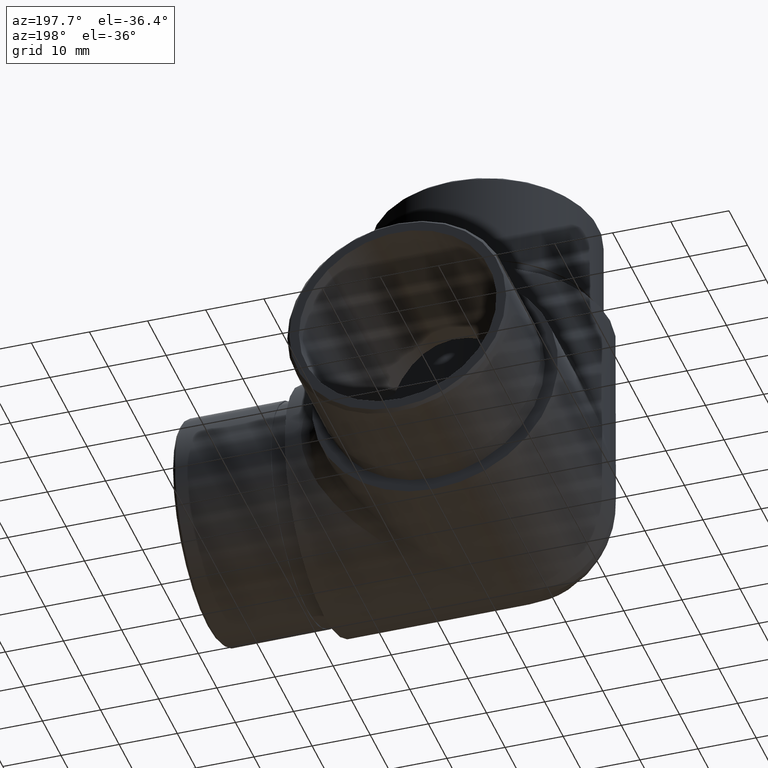
[diagram: clean part render]
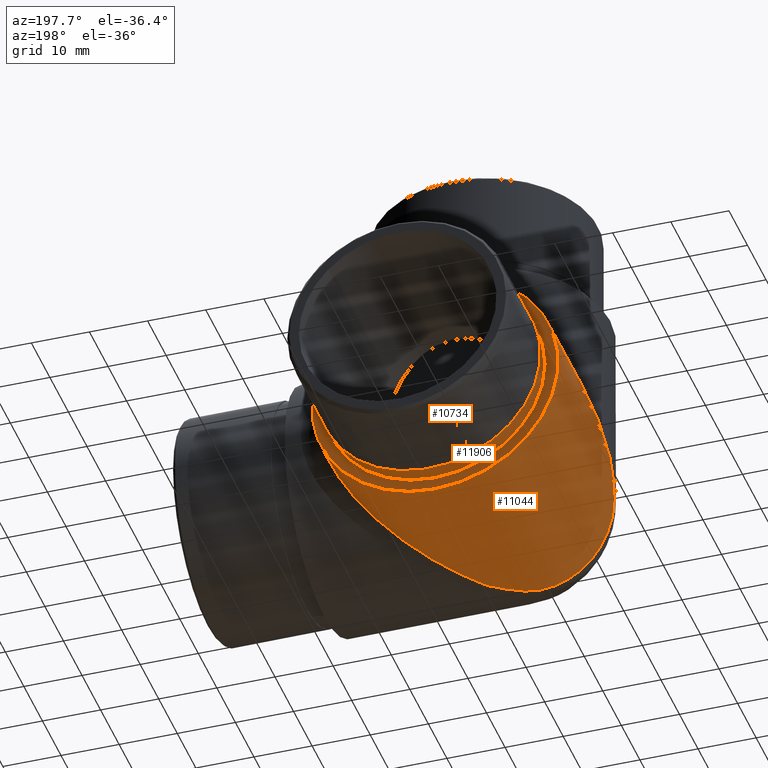
[diagram: same view with one multi-face feature highlighted, each face labeled with its STEP entity id]
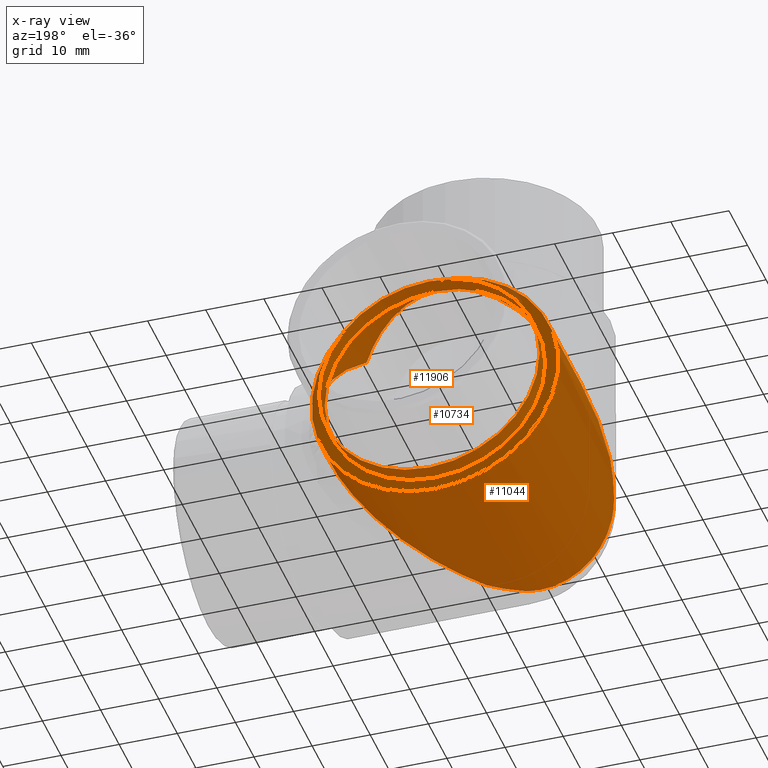
[diagram: x-ray of the same camera — body ghosted, the whole feature saturated]
A machine part, auxiliary view. The highlighted faces form ONE feature: a stepped (counterbored) hole: 2 coaxial cylindrical walls of radii 18.95 -> 21.2 mm joined by 1 annular planar shoulder face(s). The faces share edges in the B-rep.
The next image is the same camera in x-ray: the body ghosted and the whole hole feature saturated, so the bore chain is visible through the body.
Their STEP definitions:
[1] entity #11044 (Cylinder):
#71 = CARTESIAN_POINT ( 'NONE',  ( -18.08536954167242400, 14.27693381005243200, 10.09506733471837800 ) ) ;
#126 = CARTESIAN_POINT ( 'NONE',  ( -5.197968279103943900, 16.98278045280242300, 0.6471139308994096100 ) ) ;
#135 = CARTESIAN_POINT ( 'NONE',  ( 0.0000000000000000000, 21.19999999999999900, 21.20000000000000300 ) ) ;
#204 = CARTESIAN_POINT ( 'NONE',  ( -15.68952493644962900, 13.83366260230900500, 6.933596255399578500 ) ) ;
#283 =( BOUNDED_CURVE ( )  B_SPLINE_CURVE ( 3, ( #5126, #10273, #10177, #320 ),
 .UNSPECIFIED., .F., .F. ) 
 B_SPLINE_CURVE_WITH_KNOTS ( ( 4, 4 ),
 ( 4.464676216073330700, 4.712388980384689700 ),
 .UNSPECIFIED. ) 
 CURVE ( )  GEOMETRIC_REPRESENTATION_ITEM ( )  RATIONAL_B_SPLINE_CURVE ( ( 1.000000000000000000, 0.9948930657463034300, 0.9948930657463034300, 1.000000000000000000 ) ) 
 REPRESENTATION_ITEM ( '' )  );
#320 = CARTESIAN_POINT ( 'NONE',  ( -21.20000000000000300, 21.19999999999999600, 21.19999999999999900 ) ) ;
#425 = CARTESIAN_POINT ( 'NONE',  ( -20.55288606910059500, 16.98278045280247600, 16.00203172089607400 ) ) ;
#739 = CARTESIAN_POINT ( 'NONE',  ( 0.0000000000000000000, 21.19999999999999900, 3.469446951953614200E-015 ) ) ;
#958 = ORIENTED_EDGE ( 'NONE', *, *, #2876, .T. ) ;
#1094 = CARTESIAN_POINT ( 'NONE',  ( -20.55288606910059500, 16.98278045280247600, 16.00203172089607400 ) ) ;
#1129 = B_SPLINE_CURVE_WITH_KNOTS ( 'NONE', 3,
 ( #11229, #9098, #11097, #8198, #8145, #2229, #11149, #3103, #2135, #9153, #4162, #3151, #5177, #6190, #7050, #9237, #204, #7183, #11053, #2179, #71, #5320, #2409, #12411, #8438, #8400, #4477, #425 ),
 .UNSPECIFIED., .F., .F.,
 ( 4, 2, 2, 2, 2, 2, 2, 2, 2, 2, 2, 2, 2, 4 ),
 ( 0.0000000000000000000, 0.001495338597872463700, 0.002990677195744927400, 0.004486015793617390900, 0.005981354391489854800, 0.007476692989362318700, 0.008972031587234781700, 0.01196270878297970600, 0.01345804738085217200, 0.01495338597872463700, 0.01794406317446955700, 0.02093474037021448100, 0.02243007896808694300, 0.02392541756595940200 ),
 .UNSPECIFIED. ) ;
#1313 = EDGE_CURVE ( 'NONE', #6677, #10725, #12597, .T. ) ;
#1835 = CARTESIAN_POINT ( 'NONE',  ( 0.0000000000000000000, 49.19999999999999600, 42.40000000000000600 ) ) ;
#2042 = ORIENTED_EDGE ( 'NONE', *, *, #12171, .T. ) ;
#2135 = CARTESIAN_POINT ( 'NONE',  ( -9.820535882018989000, 14.64204169527234700, 2.405513702933931100 ) ) ;
#2179 = CARTESIAN_POINT ( 'NONE',  ( -17.55149368628998400, 14.10536206370518500, 9.268225289280799500 ) ) ;
#2229 = CARTESIAN_POINT ( 'NONE',  ( -8.089651255128046600, 15.27566649698903600, 1.598777189915507400 ) ) ;
#2255 = DIRECTION ( 'NONE',  ( 0.0000000000000000000, 0.0000000000000000000, 1.000000000000000000 ) ) ;
#2409 = CARTESIAN_POINT ( 'NONE',  ( -19.43077296712029400, 15.07226308697375400, 12.67242482699260700 ) ) ;
#2876 = EDGE_CURVE ( 'NONE', #7378, #9991, #283, .T. ) ;
#3103 = CARTESIAN_POINT ( 'NONE',  ( -9.391087212507073900, 14.78000276259461600, 2.187490430807732500 ) ) ;
#3151 = CARTESIAN_POINT ( 'NONE',  ( -11.92146516739235000, 14.12019775378289100, 3.662523492394984500 ) ) ;
#3445 = DIRECTION ( 'NONE',  ( 0.0000000000000000000, 0.0000000000000000000, 1.000000000000000000 ) ) ;
#3481 = VERTEX_POINT ( 'NONE', #3553 ) ;
#3553 = CARTESIAN_POINT ( 'NONE',  ( -5.197968279103943900, 16.98278045280242300, 0.6471139308994096100 ) ) ;
#3740 = ORIENTED_EDGE ( 'NONE', *, *, #10962, .T. ) ;
#3790 = CARTESIAN_POINT ( 'NONE',  ( 14.99066376115480100, 39.01909088590100100, 36.19066376115481600 ) ) ;
#3895 = AXIS2_PLACEMENT_3D ( 'NONE', #135, #5253, #2255 ) ;
#3975 = ORIENTED_EDGE ( 'NONE', *, *, #6107, .T. ) ;
#4162 = CARTESIAN_POINT ( 'NONE',  ( -11.09100523449426000, 14.29671638309033100, 3.125874381299439200 ) ) ;
#4477 = CARTESIAN_POINT ( 'NONE',  ( -20.45515652715063500, 16.66926594737545400, 15.61560686536977500 ) ) ;
#4561 = EDGE_LOOP ( 'NONE', ( #3740, #6459, #3975, #4876, #958 ) ) ;
#4876 = ORIENTED_EDGE ( 'NONE', *, *, #7369, .T. ) ;
#5101 = CARTESIAN_POINT ( 'NONE',  ( -1.754994033482943700, 19.77613691623081100, 3.361984560672234300E-015 ) ) ;
#5126 = CARTESIAN_POINT ( 'NONE',  ( -20.55288606910059500, 16.98278045280247600, 16.00203172089607400 ) ) ;
#5177 = CARTESIAN_POINT ( 'NONE',  ( -12.33249353195106000, 14.04730073014721200, 3.948970992746041000 ) ) ;
#5180 = AXIS2_PLACEMENT_3D ( 'NONE', #9614, #5485, #3445 ) ;
#5253 = DIRECTION ( 'NONE',  ( 0.0000000000000000000, 1.000000000000000000, 0.0000000000000000000 ) ) ;
#5320 = CARTESIAN_POINT ( 'NONE',  ( -19.03260916032204300, 14.76455731139192600, 11.81064914332639800 ) ) ;
#5402 = CIRCLE ( 'NONE', #5180, 21.20000000000000300 ) ;
#5485 = DIRECTION ( 'NONE',  ( -0.0000000000000000000, -1.000000000000000000, -0.0000000000000000000 ) ) ;
#6106 = CARTESIAN_POINT ( 'NONE',  ( -3.496544108248947200, 18.36318119519424700, 0.2168118876889868800 ) ) ;
#6107 = EDGE_CURVE ( 'NONE', #10725, #3481, #10006, .T. ) ;
#6160 = VERTEX_POINT ( 'NONE', #1835 ) ;
#6190 = CARTESIAN_POINT ( 'NONE',  ( -13.52806072536003700, 13.87495725306072100, 4.846860634425551600 ) ) ;
#6459 = ORIENTED_EDGE ( 'NONE', *, *, #1313, .T. ) ;
#6677 = VERTEX_POINT ( 'NONE', #11952 ) ;
#6771 = CARTESIAN_POINT ( 'NONE',  ( -21.19999999999999200, 47.57612009653620800, 43.38943436692729000 ) ) ;
#6824 = CARTESIAN_POINT ( 'NONE',  ( 14.99066376115480100, 39.01909088590100100, 36.19066376115481600 ) ) ;
#6955 = CARTESIAN_POINT ( 'NONE',  ( -21.20000000000000300, 21.19999999999999600, 21.19999999999999900 ) ) ;
#7050 = CARTESIAN_POINT ( 'NONE',  ( -14.28149651895796900, 13.81943085732853200, 5.500196590529179200 ) ) ;
#7183 = CARTESIAN_POINT ( 'NONE',  ( -16.34651744384988700, 13.89079711781421100, 7.691379197218735100 ) ) ;
#7369 = EDGE_CURVE ( 'NONE', #3481, #7378, #1129, .T. ) ;
#7378 = VERTEX_POINT ( 'NONE', #1094 ) ;
#7821 = CARTESIAN_POINT ( 'NONE',  ( 22.18943436692730800, 47.57612009653623600, 1.176705184447823300E-014 ) ) ;
#7857 =( BOUNDED_CURVE ( )  B_SPLINE_CURVE ( 3, ( #6955, #6771, #12747, #3790 ),
 .UNSPECIFIED., .F., .T. ) 
 B_SPLINE_CURVE_WITH_KNOTS ( ( 4, 4 ),
 ( 4.712388980384689700, 7.068583470577033600 ),
 .UNSPECIFIED. ) 
 CURVE ( )  GEOMETRIC_REPRESENTATION_ITEM ( )  RATIONAL_B_SPLINE_CURVE ( ( 1.000000000000000000, 0.5884556215767268200, 0.5884556215767268200, 1.000000000000000000 ) ) 
 REPRESENTATION_ITEM ( '' )  );
#8145 = CARTESIAN_POINT ( 'NONE',  ( -7.234288008887868500, 15.67506620106537000, 1.267226232041046800 ) ) ;
#8198 = CARTESIAN_POINT ( 'NONE',  ( -6.812397296928012700, 15.89623103818427900, 1.119703505051878900 ) ) ;
#8400 = CARTESIAN_POINT ( 'NONE',  ( -20.33985751058986600, 16.38929708899549100, 15.20654693153173700 ) ) ;
#8438 = CARTESIAN_POINT ( 'NONE',  ( -20.07536486093711000, 15.88786235754972900, 14.37277443354314600 ) ) ;
#8585 = CARTESIAN_POINT ( 'NONE',  ( -21.20000000000000300, 21.19999999999999600, 21.19999999999999900 ) ) ;
#8781 = CARTESIAN_POINT ( 'NONE',  ( 0.0000000000000000000, 21.19999999999999900, 3.469446951953614200E-015 ) ) ;
#8832 = CARTESIAN_POINT ( 'NONE',  ( 30.68096327270293200, 57.66982426755253500, 20.50036424960669700 ) ) ;
#9023 = CARTESIAN_POINT ( 'NONE',  ( 0.0000000000000000000, 21.19999999999999900, 3.469446951953614200E-015 ) ) ;
#9098 = CARTESIAN_POINT ( 'NONE',  ( -5.584814091753020900, 16.66892441612488100, 0.7449499358426353600 ) ) ;
#9153 = CARTESIAN_POINT ( 'NONE',  ( -10.67048746986737100, 14.40037622838390700, 2.874707714854037200 ) ) ;
#9237 = CARTESIAN_POINT ( 'NONE',  ( -15.34480981153478600, 13.81940756289023200, 6.563468500799594100 ) ) ;
#9614 = CARTESIAN_POINT ( 'NONE',  ( 0.0000000000000000000, 49.19999999999999600, 21.20000000000000300 ) ) ;
#9991 = VERTEX_POINT ( 'NONE', #8585 ) ;
#10006 =( BOUNDED_CURVE ( )  B_SPLINE_CURVE ( 3, ( #9023, #5101, #6106, #126 ),
 .UNSPECIFIED., .F., .T. ) 
 B_SPLINE_CURVE_WITH_KNOTS ( ( 4, 4 ),
 ( 1.570796326794896600, 1.818509091106257100 ),
 .UNSPECIFIED. ) 
 CURVE ( )  GEOMETRIC_REPRESENTATION_ITEM ( )  RATIONAL_B_SPLINE_CURVE ( ( 1.000000000000000000, 0.9948930657463034300, 0.9948930657463034300, 1.000000000000000000 ) ) 
 REPRESENTATION_ITEM ( '' )  );
#10177 = CARTESIAN_POINT ( 'NONE',  ( -21.19999999999999600, 19.77613691623081800, 19.44500596651706200 ) ) ;
#10217 = FACE_OUTER_BOUND ( 'NONE', #10816, .T. ) ;
#10273 = CARTESIAN_POINT ( 'NONE',  ( -20.98318811231101200, 18.36318119519426200, 17.70345589175107300 ) ) ;
#10725 = VERTEX_POINT ( 'NONE', #739 ) ;
#10816 = EDGE_LOOP ( 'NONE', ( #2042 ) ) ;
#10962 = EDGE_CURVE ( 'NONE', #9991, #6677, #7857, .T. ) ;
#11044 = ADVANCED_FACE ( 'NONE', ( #11303, #10217 ), #11463, .T. ) ;
#11053 = CARTESIAN_POINT ( 'NONE',  ( -16.65923689557184100, 13.93351823779910100, 8.079200838019559700 ) ) ;
#11097 = CARTESIAN_POINT ( 'NONE',  ( -5.987738153905797700, 16.39329701911221400, 0.8585630778826571800 ) ) ;
#11149 = CARTESIAN_POINT ( 'NONE',  ( -8.525475077174363000, 15.09675103101153400, 1.783916103909619000 ) ) ;
#11229 = CARTESIAN_POINT ( 'NONE',  ( -5.197968279103943900, 16.98278045280242300, 0.6471139308994096100 ) ) ;
#11303 = FACE_OUTER_BOUND ( 'NONE', #4561, .T. ) ;
#11463 = CYLINDRICAL_SURFACE ( 'NONE', #3895, 21.20000000000000300 ) ;
#11952 = CARTESIAN_POINT ( 'NONE',  ( 14.99066376115480100, 39.01909088590100100, 36.19066376115481600 ) ) ;
#12171 = EDGE_CURVE ( 'NONE', #6160, #6160, #5402, .T. ) ;
#12411 = CARTESIAN_POINT ( 'NONE',  ( -19.92690911153432200, 15.66706144527364100, 13.94969570511577700 ) ) ;
#12597 =( BOUNDED_CURVE ( )  B_SPLINE_CURVE ( 3, ( #6824, #8832, #7821, #8781 ),
 .UNSPECIFIED., .F., .F. ) 
 B_SPLINE_CURVE_WITH_KNOTS ( ( 4, 4 ),
 ( 5.497787143782138000, 7.853981633974482800 ),
 .UNSPECIFIED. ) 
 CURVE ( )  GEOMETRIC_REPRESENTATION_ITEM ( )  RATIONAL_B_SPLINE_CURVE ( ( 1.000000000000000000, 0.5884556215767264800, 0.5884556215767264800, 1.000000000000000000 ) ) 
 REPRESENTATION_ITEM ( '' )  );
#12747 = CARTESIAN_POINT ( 'NONE',  ( -0.6996357503933330300, 57.66982426755251400, 51.88096327270293500 ) ) ;
[2] entity #11906 (Cylinder):
#18 = DIRECTION ( 'NONE',  ( 0.0000000000000000000, -3.661685437418062100E-016, -1.000000000000000000 ) ) ;
#82 = DIRECTION ( 'NONE',  ( 0.0000000000000000000, 1.000000000000000000, 0.0000000000000000000 ) ) ;
#756 = CARTESIAN_POINT ( 'NONE',  ( 0.0000000000000000000, 49.19999999999999600, 40.14999999999997700 ) ) ;
#1141 = VERTEX_POINT ( 'NONE', #756 ) ;
#1437 = EDGE_CURVE ( 'NONE', #7248, #7248, #6285, .T. ) ;
#1453 = FACE_OUTER_BOUND ( 'NONE', #9318, .T. ) ;
#2489 = EDGE_LOOP ( 'NONE', ( #8654 ) ) ;
#5671 = DIRECTION ( 'NONE',  ( -0.0000000000000000000, -1.000000000000000000, 4.440892098500625200E-016 ) ) ;
#6285 = CIRCLE ( 'NONE', #8593, 18.94999999999999900 ) ;
#6460 = FACE_OUTER_BOUND ( 'NONE', #2489, .T. ) ;
#6566 = DIRECTION ( 'NONE',  ( 0.0000000000000000000, 3.661685437418062600E-016, 1.000000000000000000 ) ) ;
#6787 = ORIENTED_EDGE ( 'NONE', *, *, #1437, .T. ) ;
#6842 = AXIS2_PLACEMENT_3D ( 'NONE', #9841, #82, #12869 ) ;
#7248 = VERTEX_POINT ( 'NONE', #9876 ) ;
#8006 = CARTESIAN_POINT ( 'NONE',  ( 0.0000000000000000000, 52.20000000000000300, 21.19999999999997800 ) ) ;
#8593 = AXIS2_PLACEMENT_3D ( 'NONE', #11533, #5671, #6566 ) ;
#8654 = ORIENTED_EDGE ( 'NONE', *, *, #10107, .T. ) ;
#9194 = AXIS2_PLACEMENT_3D ( 'NONE', #8006, #9957, #18 ) ;
#9318 = EDGE_LOOP ( 'NONE', ( #6787 ) ) ;
#9841 = CARTESIAN_POINT ( 'NONE',  ( 0.0000000000000000000, 49.19999999999999600, 21.19999999999997800 ) ) ;
#9876 = CARTESIAN_POINT ( 'NONE',  ( 0.0000000000000000000, 52.20000000000001000, 40.14999999999997700 ) ) ;
#9957 = DIRECTION ( 'NONE',  ( -0.0000000000000000000, -1.000000000000000000, 4.440892098500624700E-016 ) ) ;
#10107 = EDGE_CURVE ( 'NONE', #1141, #1141, #10692, .T. ) ;
#10692 = CIRCLE ( 'NONE', #6842, 18.94999999999999900 ) ;
#11533 = CARTESIAN_POINT ( 'NONE',  ( 0.0000000000000000000, 52.20000000000000300, 21.19999999999997800 ) ) ;
#11590 = CYLINDRICAL_SURFACE ( 'NONE', #9194, 18.95000000000000300 ) ;
#11906 = ADVANCED_FACE ( 'NONE', ( #1453, #6460 ), #11590, .T. ) ;
#12869 = DIRECTION ( 'NONE',  ( 0.0000000000000000000, 0.0000000000000000000, 1.000000000000000000 ) ) ;
[3] entity #10734 (Plane):
#82 = DIRECTION ( 'NONE',  ( 0.0000000000000000000, 1.000000000000000000, 0.0000000000000000000 ) ) ;
#756 = CARTESIAN_POINT ( 'NONE',  ( 0.0000000000000000000, 49.19999999999999600, 40.14999999999997700 ) ) ;
#1141 = VERTEX_POINT ( 'NONE', #756 ) ;
#1353 = EDGE_LOOP ( 'NONE', ( #11489 ) ) ;
#1835 = CARTESIAN_POINT ( 'NONE',  ( 0.0000000000000000000, 49.19999999999999600, 42.40000000000000600 ) ) ;
#2084 = ORIENTED_EDGE ( 'NONE', *, *, #10107, .F. ) ;
#2741 = DIRECTION ( 'NONE',  ( 0.0000000000000000000, -0.0000000000000000000, 1.000000000000000000 ) ) ;
#3445 = DIRECTION ( 'NONE',  ( 0.0000000000000000000, 0.0000000000000000000, 1.000000000000000000 ) ) ;
#3500 = FACE_OUTER_BOUND ( 'NONE', #1353, .T. ) ;
#4274 = EDGE_LOOP ( 'NONE', ( #2084 ) ) ;
#5180 = AXIS2_PLACEMENT_3D ( 'NONE', #9614, #5485, #3445 ) ;
#5402 = CIRCLE ( 'NONE', #5180, 21.20000000000000300 ) ;
#5485 = DIRECTION ( 'NONE',  ( -0.0000000000000000000, -1.000000000000000000, -0.0000000000000000000 ) ) ;
#5559 = FACE_BOUND ( 'NONE', #4274, .T. ) ;
#6160 = VERTEX_POINT ( 'NONE', #1835 ) ;
#6638 = CARTESIAN_POINT ( 'NONE',  ( 0.0000000000000000000, 49.19999999999999600, 21.20000000000000600 ) ) ;
#6842 = AXIS2_PLACEMENT_3D ( 'NONE', #9841, #82, #12869 ) ;
#7741 = DIRECTION ( 'NONE',  ( 0.0000000000000000000, 1.000000000000000000, 0.0000000000000000000 ) ) ;
#9614 = CARTESIAN_POINT ( 'NONE',  ( 0.0000000000000000000, 49.19999999999999600, 21.20000000000000300 ) ) ;
#9841 = CARTESIAN_POINT ( 'NONE',  ( 0.0000000000000000000, 49.19999999999999600, 21.19999999999997800 ) ) ;
#9927 = AXIS2_PLACEMENT_3D ( 'NONE', #6638, #7741, #2741 ) ;
#10107 = EDGE_CURVE ( 'NONE', #1141, #1141, #10692, .T. ) ;
#10692 = CIRCLE ( 'NONE', #6842, 18.94999999999999900 ) ;
#10734 = ADVANCED_FACE ( 'NONE', ( #5559, #3500 ), #11551, .T. ) ;
#11489 = ORIENTED_EDGE ( 'NONE', *, *, #12171, .F. ) ;
#11551 = PLANE ( 'NONE',  #9927 ) ;
#12171 = EDGE_CURVE ( 'NONE', #6160, #6160, #5402, .T. ) ;
#12869 = DIRECTION ( 'NONE',  ( 0.0000000000000000000, 0.0000000000000000000, 1.000000000000000000 ) ) ;